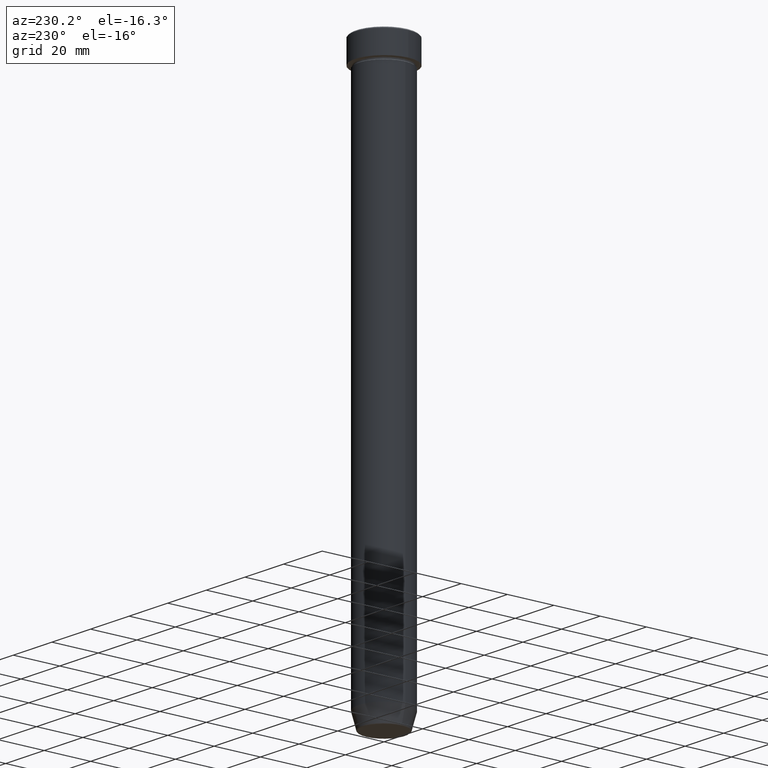
[diagram: clean part render]
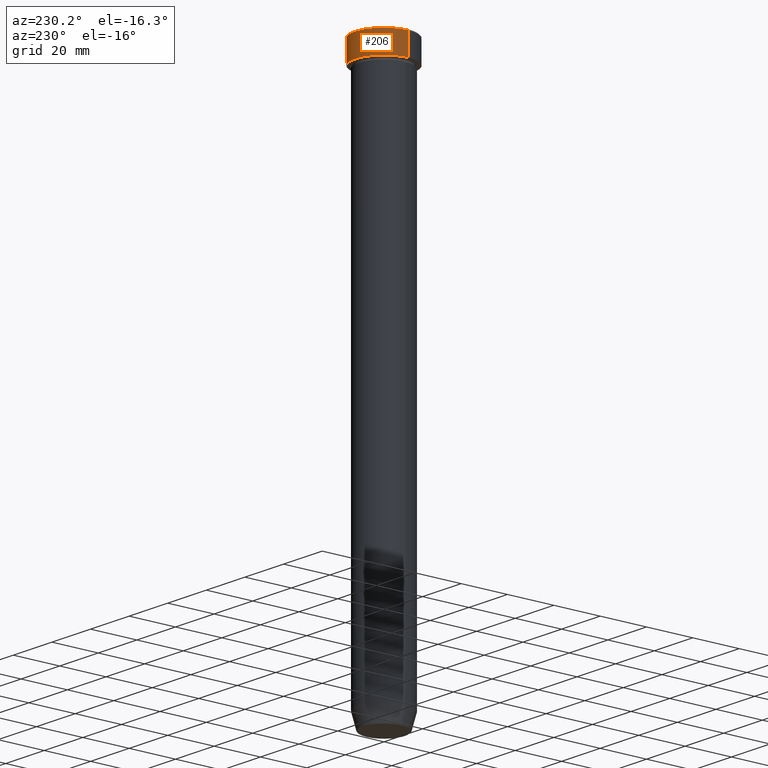
[diagram: same view with one face highlighted and labeled with its STEP entity id]
A machine part, auxiliary view. The second image highlights one B-rep face of the part: STEP entity #206.
In plain terms, the highlighted cylindrical surface (partial cylindrical patch) has radius 12.5 mm, axis along (-0, -0, 1).
Its self-contained STEP definition (entity closure, byte-faithful):
#12 = CYLINDRICAL_SURFACE ( 'NONE', #118, 12.50000000000000000 ) ;
#16 = CARTESIAN_POINT ( 'NONE',  ( 0.000000000000000000, 0.000000000000000000, -10.00000000000000000 ) ) ;
#31 = VERTEX_POINT ( 'NONE', #188 ) ;
#33 = CARTESIAN_POINT ( 'NONE',  ( 0.000000000000000000, 0.000000000000000000, -0.4999999999999988343 ) ) ;
#37 = VERTEX_POINT ( 'NONE', #325 ) ;
#47 = VECTOR ( 'NONE', #394, 1000.000000000000000 ) ;
#58 = ORIENTED_EDGE ( 'NONE', *, *, #267, .T. ) ;
#82 = LINE ( 'NONE', #439, #47 ) ;
#116 = EDGE_CURVE ( 'NONE', #31, #37, #522, .T. ) ;
#118 = AXIS2_PLACEMENT_3D ( 'NONE', #558, #146, #503 ) ;
#146 = DIRECTION ( 'NONE',  ( -0.000000000000000000, -0.000000000000000000, 1.000000000000000000 ) ) ;
#169 = LINE ( 'NONE', #351, #550 ) ;
#185 = AXIS2_PLACEMENT_3D ( 'NONE', #33, #569, #209 ) ;
#188 = CARTESIAN_POINT ( 'NONE',  ( -12.50000000000000000, 1.530808498934191521E-15, -0.4999999999999988343 ) ) ;
#206 = ADVANCED_FACE ( 'NONE', ( #592 ), #12, .T. ) ;
#209 = DIRECTION ( 'NONE',  ( 1.000000000000000000, 0.000000000000000000, 0.000000000000000000 ) ) ;
#213 = ORIENTED_EDGE ( 'NONE', *, *, #498, .T. ) ;
#215 = CARTESIAN_POINT ( 'NONE',  ( 12.50000000000000000, 0.000000000000000000, -10.00000000000000000 ) ) ;
#216 = CARTESIAN_POINT ( 'NONE',  ( -12.50000000000000000, 1.530808498934191521E-15, -10.00000000000000000 ) ) ;
#231 = CIRCLE ( 'NONE', #307, 12.50000000000000000 ) ;
#267 = EDGE_CURVE ( 'NONE', #422, #428, #231, .T. ) ;
#307 = AXIS2_PLACEMENT_3D ( 'NONE', #16, #341, #383 ) ;
#325 = CARTESIAN_POINT ( 'NONE',  ( 12.50000000000000000, 0.000000000000000000, -0.4999999999999988343 ) ) ;
#341 = DIRECTION ( 'NONE',  ( -0.000000000000000000, -0.000000000000000000, 1.000000000000000000 ) ) ;
#351 = CARTESIAN_POINT ( 'NONE',  ( 12.50000000000000000, 0.000000000000000000, 0.000000000000000000 ) ) ;
#383 = DIRECTION ( 'NONE',  ( 1.000000000000000000, 0.000000000000000000, 0.000000000000000000 ) ) ;
#394 = DIRECTION ( 'NONE',  ( -0.000000000000000000, -0.000000000000000000, 1.000000000000000000 ) ) ;
#422 = VERTEX_POINT ( 'NONE', #215 ) ;
#428 = VERTEX_POINT ( 'NONE', #216 ) ;
#438 = EDGE_LOOP ( 'NONE', ( #58, #213, #566, #538 ) ) ;
#439 = CARTESIAN_POINT ( 'NONE',  ( -12.50000000000000000, 1.530808498934191521E-15, 0.000000000000000000 ) ) ;
#490 = DIRECTION ( 'NONE',  ( -0.000000000000000000, -0.000000000000000000, 1.000000000000000000 ) ) ;
#498 = EDGE_CURVE ( 'NONE', #428, #31, #82, .T. ) ;
#503 = DIRECTION ( 'NONE',  ( 1.000000000000000000, 0.000000000000000000, 0.000000000000000000 ) ) ;
#522 = CIRCLE ( 'NONE', #185, 12.50000000000000000 ) ;
#524 = EDGE_CURVE ( 'NONE', #422, #37, #169, .T. ) ;
#538 = ORIENTED_EDGE ( 'NONE', *, *, #524, .F. ) ;
#550 = VECTOR ( 'NONE', #490, 1000.000000000000000 ) ;
#558 = CARTESIAN_POINT ( 'NONE',  ( 0.000000000000000000, 0.000000000000000000, 0.000000000000000000 ) ) ;
#566 = ORIENTED_EDGE ( 'NONE', *, *, #116, .T. ) ;
#569 = DIRECTION ( 'NONE',  ( 0.000000000000000000, 0.000000000000000000, -1.000000000000000000 ) ) ;
#592 = FACE_OUTER_BOUND ( 'NONE', #438, .T. ) ;